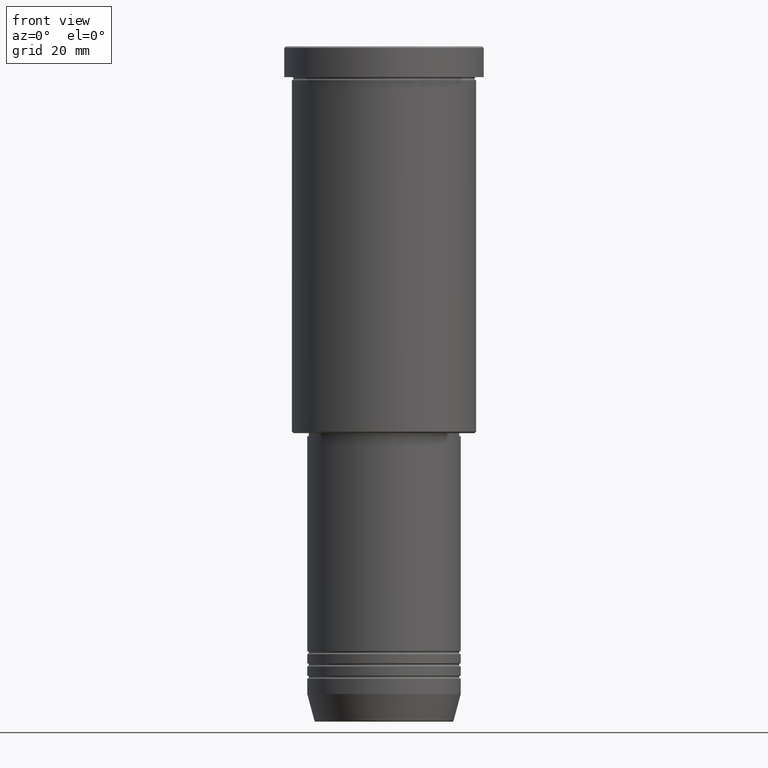
[diagram: clean part render]
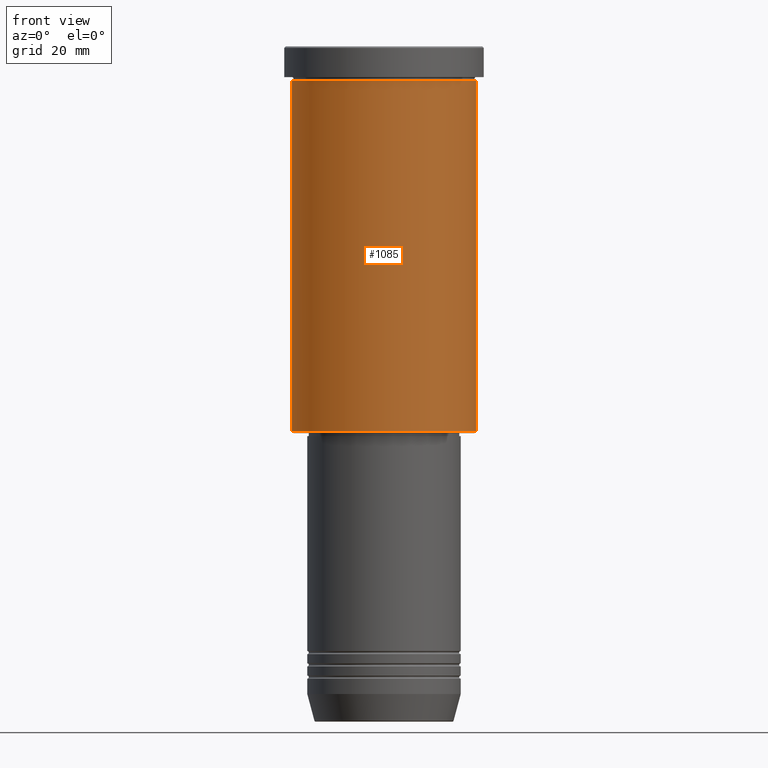
[diagram: same view with one face highlighted and labeled with its STEP entity id]
A machine part, front view. The second image highlights one B-rep face of the part: STEP entity #1085.
In plain terms, the highlighted cylindrical surface (partial cylindrical patch) has radius 30 mm, axis along (-0, -0, 1).
Its self-contained STEP definition (entity closure, byte-faithful):
#29 = AXIS2_PLACEMENT_3D ( 'NONE', #802, #166, #367 ) ;
#56 = LINE ( 'NONE', #962, #1133 ) ;
#66 = CIRCLE ( 'NONE', #29, 30.00000000000000000 ) ;
#90 = EDGE_CURVE ( 'NONE', #609, #1127, #860, .T. ) ;
#120 = VECTOR ( 'NONE', #247, 1000.000000000000000 ) ;
#166 = DIRECTION ( 'NONE',  ( -0.000000000000000000, -0.000000000000000000, 1.000000000000000000 ) ) ;
#211 = EDGE_LOOP ( 'NONE', ( #1182, #1062, #691, #764 ) ) ;
#247 = DIRECTION ( 'NONE',  ( -0.000000000000000000, -0.000000000000000000, 1.000000000000000000 ) ) ;
#249 = VERTEX_POINT ( 'NONE', #286 ) ;
#266 = EDGE_CURVE ( 'NONE', #1127, #249, #294, .T. ) ;
#286 = CARTESIAN_POINT ( 'NONE',  ( 30.00000000000000000, 0.000000000000000000, -10.99999999999999289 ) ) ;
#294 = LINE ( 'NONE', #798, #120 ) ;
#350 = DIRECTION ( 'NONE',  ( -0.000000000000000000, -0.000000000000000000, 1.000000000000000000 ) ) ;
#367 = DIRECTION ( 'NONE',  ( 1.000000000000000000, 0.000000000000000000, 0.000000000000000000 ) ) ;
#368 = DIRECTION ( 'NONE',  ( -1.000000000000000000, 0.000000000000000000, 0.000000000000000000 ) ) ;
#401 = DIRECTION ( 'NONE',  ( -0.000000000000000000, -0.000000000000000000, 1.000000000000000000 ) ) ;
#532 = EDGE_CURVE ( 'NONE', #677, #249, #66, .T. ) ;
#579 = CARTESIAN_POINT ( 'NONE',  ( -30.00000000000000000, 3.673940397442059178E-15, -10.99999999999999289 ) ) ;
#609 = VERTEX_POINT ( 'NONE', #743 ) ;
#677 = VERTEX_POINT ( 'NONE', #579 ) ;
#687 = DIRECTION ( 'NONE',  ( 1.000000000000000000, 0.000000000000000000, 0.000000000000000000 ) ) ;
#691 = ORIENTED_EDGE ( 'NONE', *, *, #266, .T. ) ;
#702 = AXIS2_PLACEMENT_3D ( 'NONE', #925, #1043, #687 ) ;
#743 = CARTESIAN_POINT ( 'NONE',  ( -30.00000000000000000, 3.673940397442059178E-15, -125.5000000000000000 ) ) ;
#764 = ORIENTED_EDGE ( 'NONE', *, *, #532, .F. ) ;
#798 = CARTESIAN_POINT ( 'NONE',  ( 30.00000000000000000, 0.000000000000000000, 0.000000000000000000 ) ) ;
#802 = CARTESIAN_POINT ( 'NONE',  ( 0.000000000000000000, 0.000000000000000000, -10.99999999999999289 ) ) ;
#860 = CIRCLE ( 'NONE', #971, 30.00000000000000000 ) ;
#872 = EDGE_CURVE ( 'NONE', #609, #677, #56, .T. ) ;
#925 = CARTESIAN_POINT ( 'NONE',  ( 0.000000000000000000, 0.000000000000000000, 0.000000000000000000 ) ) ;
#962 = CARTESIAN_POINT ( 'NONE',  ( -30.00000000000000000, 3.673940397442059178E-15, 0.000000000000000000 ) ) ;
#971 = AXIS2_PLACEMENT_3D ( 'NONE', #1178, #350, #368 ) ;
#1021 = CARTESIAN_POINT ( 'NONE',  ( 30.00000000000000000, 0.000000000000000000, -125.5000000000000000 ) ) ;
#1036 = FACE_OUTER_BOUND ( 'NONE', #211, .T. ) ;
#1043 = DIRECTION ( 'NONE',  ( -0.000000000000000000, -0.000000000000000000, 1.000000000000000000 ) ) ;
#1062 = ORIENTED_EDGE ( 'NONE', *, *, #90, .T. ) ;
#1085 = ADVANCED_FACE ( 'NONE', ( #1036 ), #1128, .T. ) ;
#1127 = VERTEX_POINT ( 'NONE', #1021 ) ;
#1128 = CYLINDRICAL_SURFACE ( 'NONE', #702, 30.00000000000000000 ) ;
#1133 = VECTOR ( 'NONE', #401, 1000.000000000000000 ) ;
#1178 = CARTESIAN_POINT ( 'NONE',  ( 0.000000000000000000, 0.000000000000000000, -125.5000000000000000 ) ) ;
#1182 = ORIENTED_EDGE ( 'NONE', *, *, #872, .F. ) ;